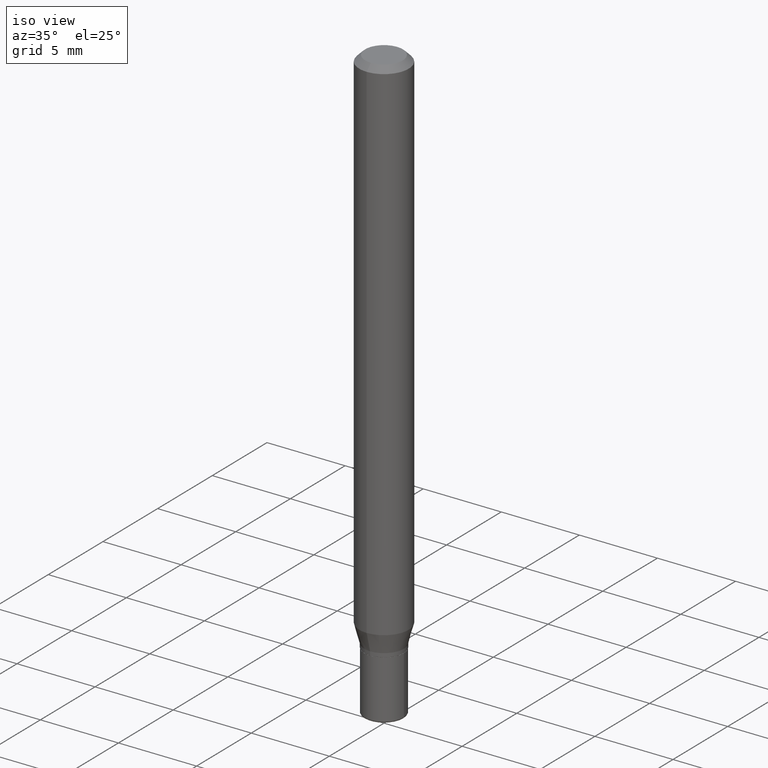
[diagram: clean part render]
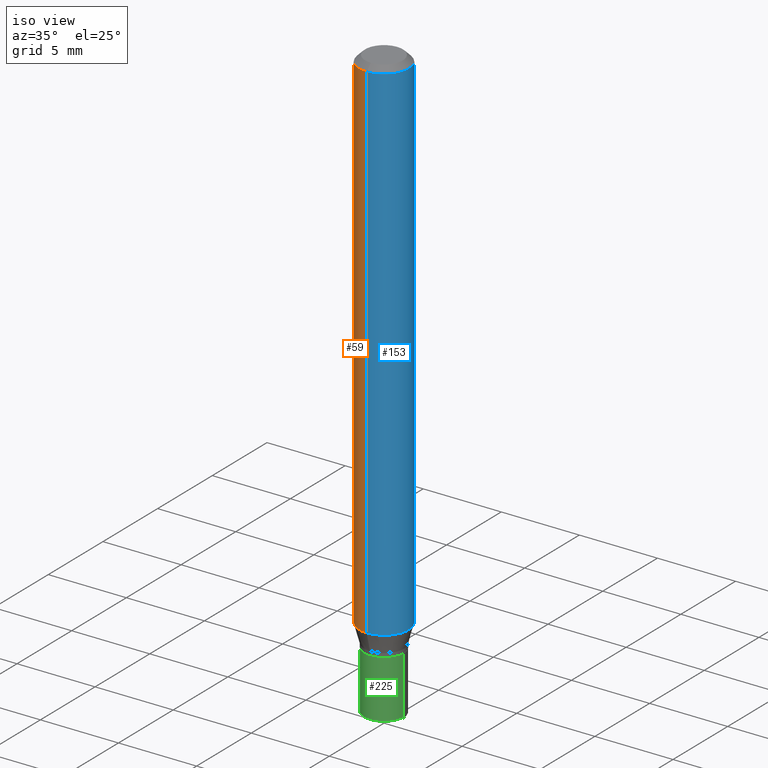
[diagram: same view with three faces highlighted in distinct colors, each labeled with its STEP entity id]
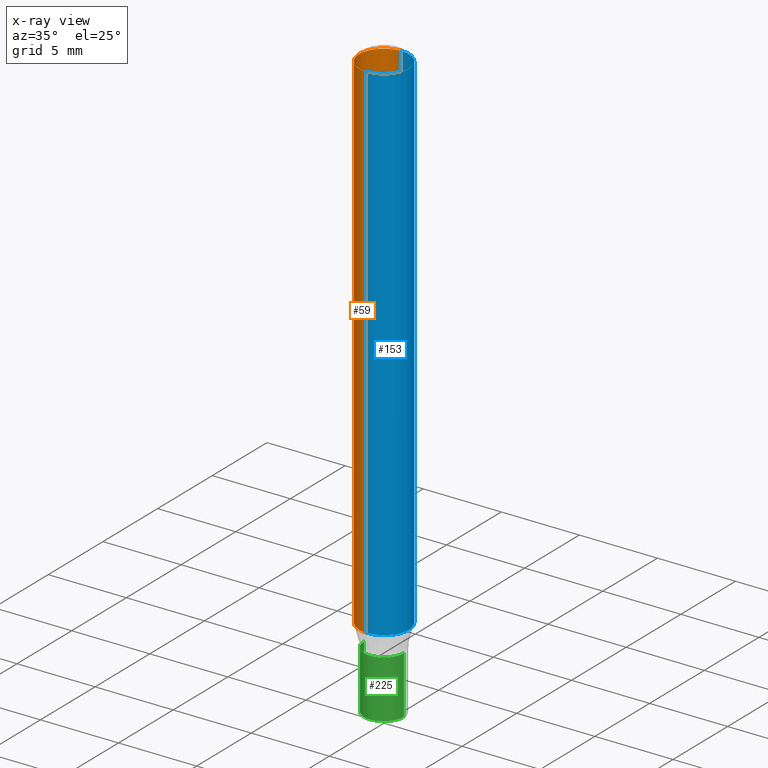
[diagram: x-ray of the same camera — body ghosted, the three highlighted faces saturated]
A machine part, iso view with three faces highlighted in distinct colors.
The next image is the same camera in x-ray (body ghosted, the three faces saturated) — at least one of them is partly hidden behind the body in this view.
Their STEP definitions:

[orange] entity #59 — the highlighted cylindrical surface (edge-blend (fillet) strip) has radius 1.5875 mm, axis along (-0, 0, 1).
#16 = VECTOR ( 'NONE', #256, 39.37007874015748143 ) ;
#30 = ORIENTED_EDGE ( 'NONE', *, *, #377, .T. ) ;
#36 = VERTEX_POINT ( 'NONE', #306 ) ;
#58 = DIRECTION ( 'NONE',  ( -2.445432708408292326E-29, 3.491533032914144486E-15, 1.000000000000000000 ) ) ;
#59 = ADVANCED_FACE ( 'NONE', ( #476 ), #396, .T. ) ;
#81 = ORIENTED_EDGE ( 'NONE', *, *, #282, .F. ) ;
#86 = CARTESIAN_POINT ( 'NONE',  ( 4.440892098500943678E-16, 0.06249999999999551747, -1.293349364905389098 ) ) ;
#99 = LINE ( 'NONE', #499, #16 ) ;
#102 = LINE ( 'NONE', #210, #217 ) ;
#116 = DIRECTION ( 'NONE',  ( -6.982962677686265922E-15, -1.000000000000000000, 4.370956789862821150E-15 ) ) ;
#133 = VERTEX_POINT ( 'NONE', #442 ) ;
#193 = EDGE_CURVE ( 'NONE', #252, #36, #508, .T. ) ;
#210 = CARTESIAN_POINT ( 'NONE',  ( -4.364351673553916201E-16, -0.06250000000000000000, 2.182208145571340057E-16 ) ) ;
#217 = VECTOR ( 'NONE', #336, 39.37007874015748143 ) ;
#223 = AXIS2_PLACEMENT_3D ( 'NONE', #267, #470, #400 ) ;
#241 = CARTESIAN_POINT ( 'NONE',  ( 4.440892098500943678E-16, 0.06249999999999995143, -0.01499999999999992138 ) ) ;
#252 = VERTEX_POINT ( 'NONE', #86 ) ;
#256 = DIRECTION ( 'NONE',  ( -2.445432708408292606E-29, 3.491533032914144486E-15, 1.000000000000000000 ) ) ;
#267 = CARTESIAN_POINT ( 'NONE',  ( 0.000000000000000000, 0.000000000000000000, 0.000000000000000000 ) ) ;
#271 = VERTEX_POINT ( 'NONE', #241 ) ;
#282 = EDGE_CURVE ( 'NONE', #271, #133, #485, .T. ) ;
#284 = AXIS2_PLACEMENT_3D ( 'NONE', #513, #479, #116 ) ;
#306 = CARTESIAN_POINT ( 'NONE',  ( -4.364351673553597698E-16, -0.06250000000000449640, -1.293349364905388654 ) ) ;
#310 = EDGE_CURVE ( 'NONE', #252, #271, #99, .T. ) ;
#336 = DIRECTION ( 'NONE',  ( -2.445432708408292606E-29, 3.491533032914144486E-15, 1.000000000000000000 ) ) ;
#376 = DIRECTION ( 'NONE',  ( -6.982962677686265922E-15, -1.000000000000000000, 3.483106191921935554E-15 ) ) ;
#377 = EDGE_CURVE ( 'NONE', #36, #133, #102, .T. ) ;
#396 = CYLINDRICAL_SURFACE ( 'NONE', #223, 0.06250000000000000000 ) ;
#400 = DIRECTION ( 'NONE',  ( -6.982962677686265922E-15, -1.000000000000000000, 3.491533032914144091E-15 ) ) ;
#425 = ORIENTED_EDGE ( 'NONE', *, *, #310, .F. ) ;
#434 = EDGE_LOOP ( 'NONE', ( #425, #480, #30, #81 ) ) ;
#442 = CARTESIAN_POINT ( 'NONE',  ( -4.364351673553912750E-16, -0.06250000000000005551, -0.01499999999999948597 ) ) ;
#460 = CARTESIAN_POINT ( 'NONE',  ( 3.668149062612366305E-31, -5.237299549371112845E-17, -0.01499999999999970281 ) ) ;
#463 = AXIS2_PLACEMENT_3D ( 'NONE', #460, #58, #376 ) ;
#470 = DIRECTION ( 'NONE',  ( -2.445432708408292326E-29, 3.491533032914144486E-15, 1.000000000000000000 ) ) ;
#476 = FACE_OUTER_BOUND ( 'NONE', #434, .T. ) ;
#479 = DIRECTION ( 'NONE',  ( -2.445432708408292326E-29, 3.491533032914144486E-15, 1.000000000000000000 ) ) ;
#480 = ORIENTED_EDGE ( 'NONE', *, *, #193, .T. ) ;
#485 = CIRCLE ( 'NONE', #463, 0.06250000000000000000 ) ;
#499 = CARTESIAN_POINT ( 'NONE',  ( 4.440892098500625669E-16, 0.06250000000000000000, -2.182208145571340057E-16 ) ) ;
#508 = CIRCLE ( 'NONE', #284, 0.06250000000000000000 ) ;
#513 = CARTESIAN_POINT ( 'NONE',  ( 3.162798840338729731E-29, -4.515772030665694516E-15, -1.293349364905388876 ) ) ;

[blue] entity #153 — the highlighted cylindrical surface (edge-blend (fillet) strip) has radius 1.5875 mm, axis along (-0, 0, 1).
#16 = VECTOR ( 'NONE', #256, 39.37007874015748143 ) ;
#18 = EDGE_CURVE ( 'NONE', #133, #271, #173, .T. ) ;
#34 = AXIS2_PLACEMENT_3D ( 'NONE', #61, #490, #219 ) ;
#36 = VERTEX_POINT ( 'NONE', #306 ) ;
#61 = CARTESIAN_POINT ( 'NONE',  ( 3.668149062612366305E-31, -5.237299549371112845E-17, -0.01499999999999970281 ) ) ;
#86 = CARTESIAN_POINT ( 'NONE',  ( 4.440892098500943678E-16, 0.06249999999999551747, -1.293349364905389098 ) ) ;
#87 = CARTESIAN_POINT ( 'NONE',  ( 0.000000000000000000, 0.000000000000000000, 0.000000000000000000 ) ) ;
#99 = LINE ( 'NONE', #499, #16 ) ;
#102 = LINE ( 'NONE', #210, #217 ) ;
#121 = FACE_OUTER_BOUND ( 'NONE', #136, .T. ) ;
#133 = VERTEX_POINT ( 'NONE', #442 ) ;
#136 = EDGE_LOOP ( 'NONE', ( #176, #317, #446, #227 ) ) ;
#140 = EDGE_CURVE ( 'NONE', #36, #252, #313, .T. ) ;
#153 = ADVANCED_FACE ( 'NONE', ( #121 ), #202, .T. ) ;
#173 = CIRCLE ( 'NONE', #34, 0.06250000000000000000 ) ;
#176 = ORIENTED_EDGE ( 'NONE', *, *, #140, .T. ) ;
#181 = AXIS2_PLACEMENT_3D ( 'NONE', #484, #404, #358 ) ;
#202 = CYLINDRICAL_SURFACE ( 'NONE', #437, 0.06250000000000000000 ) ;
#210 = CARTESIAN_POINT ( 'NONE',  ( -4.364351673553916201E-16, -0.06250000000000000000, 2.182208145571340057E-16 ) ) ;
#217 = VECTOR ( 'NONE', #336, 39.37007874015748143 ) ;
#219 = DIRECTION ( 'NONE',  ( -6.982962677686265922E-15, -1.000000000000000000, 3.483106191921935554E-15 ) ) ;
#227 = ORIENTED_EDGE ( 'NONE', *, *, #377, .F. ) ;
#241 = CARTESIAN_POINT ( 'NONE',  ( 4.440892098500943678E-16, 0.06249999999999995143, -0.01499999999999992138 ) ) ;
#252 = VERTEX_POINT ( 'NONE', #86 ) ;
#256 = DIRECTION ( 'NONE',  ( -2.445432708408292606E-29, 3.491533032914144486E-15, 1.000000000000000000 ) ) ;
#271 = VERTEX_POINT ( 'NONE', #241 ) ;
#278 = DIRECTION ( 'NONE',  ( -6.982962677686265922E-15, -1.000000000000000000, 3.491533032914144091E-15 ) ) ;
#306 = CARTESIAN_POINT ( 'NONE',  ( -4.364351673553597698E-16, -0.06250000000000449640, -1.293349364905388654 ) ) ;
#310 = EDGE_CURVE ( 'NONE', #252, #271, #99, .T. ) ;
#313 = CIRCLE ( 'NONE', #181, 0.06250000000000000000 ) ;
#317 = ORIENTED_EDGE ( 'NONE', *, *, #310, .T. ) ;
#336 = DIRECTION ( 'NONE',  ( -2.445432708408292606E-29, 3.491533032914144486E-15, 1.000000000000000000 ) ) ;
#358 = DIRECTION ( 'NONE',  ( -6.982962677686265922E-15, -1.000000000000000000, 4.370956789862821150E-15 ) ) ;
#377 = EDGE_CURVE ( 'NONE', #36, #133, #102, .T. ) ;
#404 = DIRECTION ( 'NONE',  ( -2.445432708408292326E-29, 3.491533032914144486E-15, 1.000000000000000000 ) ) ;
#437 = AXIS2_PLACEMENT_3D ( 'NONE', #87, #444, #278 ) ;
#442 = CARTESIAN_POINT ( 'NONE',  ( -4.364351673553912750E-16, -0.06250000000000005551, -0.01499999999999948597 ) ) ;
#444 = DIRECTION ( 'NONE',  ( -2.445432708408292326E-29, 3.491533032914144486E-15, 1.000000000000000000 ) ) ;
#446 = ORIENTED_EDGE ( 'NONE', *, *, #18, .F. ) ;
#484 = CARTESIAN_POINT ( 'NONE',  ( 3.162798840338729731E-29, -4.515772030665694516E-15, -1.293349364905388876 ) ) ;
#490 = DIRECTION ( 'NONE',  ( -2.445432708408292326E-29, 3.491533032914144486E-15, 1.000000000000000000 ) ) ;
#499 = CARTESIAN_POINT ( 'NONE',  ( 4.440892098500625669E-16, 0.06250000000000000000, -2.182208145571340057E-16 ) ) ;

[green] entity #225 — the highlighted cylindrical surface (edge-blend (fillet) strip) has radius 1.27 mm, axis along (-0, 0, 1).
#2 = AXIS2_PLACEMENT_3D ( 'NONE', #270, #74, #432 ) ;
#6 = CARTESIAN_POINT ( 'NONE',  ( -0.05000000000000000278, -4.611360836624325249E-15, -1.350000000000000089 ) ) ;
#12 = ORIENTED_EDGE ( 'NONE', *, *, #303, .F. ) ;
#35 = VECTOR ( 'NONE', #418, 39.37007874015748143 ) ;
#42 = DIRECTION ( 'NONE',  ( -2.445468806185136597E-29, 3.491481338843145583E-15, 1.000000000000000000 ) ) ;
#64 = EDGE_CURVE ( 'NONE', #364, #423, #351, .T. ) ;
#74 = DIRECTION ( 'NONE',  ( -2.445468806185136597E-29, 3.491481338843145583E-15, 1.000000000000000000 ) ) ;
#83 = CIRCLE ( 'NONE', #323, 0.05000000000000000278 ) ;
#112 = DIRECTION ( 'NONE',  ( 1.000000000000000000, -6.982962677686274599E-15, 0.000000000000000000 ) ) ;
#137 = CARTESIAN_POINT ( 'NONE',  ( 0.04999999999999996114, -3.491481338843130397E-16, 2.438088387897966145E-30 ) ) ;
#145 = VERTEX_POINT ( 'NONE', #477 ) ;
#152 = CARTESIAN_POINT ( 'NONE',  ( 0.000000000000000000, 0.000000000000000000, 0.000000000000000000 ) ) ;
#160 = EDGE_CURVE ( 'NONE', #321, #145, #83, .T. ) ;
#197 = DIRECTION ( 'NONE',  ( 1.000000000000000000, -6.982962677686265922E-15, 4.876176775795936353E-29 ) ) ;
#207 = CARTESIAN_POINT ( 'NONE',  ( 0.04999999999999991257, -5.568912735454817265E-15, -1.495000000000000329 ) ) ;
#220 = CARTESIAN_POINT ( 'NONE',  ( -0.04999999999999991257, -4.611360836624325249E-15, -1.495000000000000329 ) ) ;
#225 = ADVANCED_FACE ( 'NONE', ( #487 ), #320, .T. ) ;
#264 = LINE ( 'NONE', #137, #431 ) ;
#270 = CARTESIAN_POINT ( 'NONE',  ( 3.655975865246779683E-29, -5.219764601570503930E-15, -1.495000000000000329 ) ) ;
#273 = ORIENTED_EDGE ( 'NONE', *, *, #64, .T. ) ;
#281 = ORIENTED_EDGE ( 'NONE', *, *, #327, .T. ) ;
#300 = CARTESIAN_POINT ( 'NONE',  ( -0.04999999999999996114, 3.552713678800498168E-16, -2.459467545127451209E-30 ) ) ;
#303 = EDGE_CURVE ( 'NONE', #364, #321, #373, .T. ) ;
#320 = CYLINDRICAL_SURFACE ( 'NONE', #408, 0.04999999999999996114 ) ;
#321 = VERTEX_POINT ( 'NONE', #6 ) ;
#323 = AXIS2_PLACEMENT_3D ( 'NONE', #356, #440, #112 ) ;
#327 = EDGE_CURVE ( 'NONE', #423, #145, #264, .T. ) ;
#351 = CIRCLE ( 'NONE', #2, 0.04999999999999991257 ) ;
#356 = CARTESIAN_POINT ( 'NONE',  ( 3.301382888349935078E-29, -4.713499807438246596E-15, -1.350000000000000089 ) ) ;
#364 = VERTEX_POINT ( 'NONE', #220 ) ;
#373 = LINE ( 'NONE', #300, #35 ) ;
#384 = DIRECTION ( 'NONE',  ( -2.445468806185136877E-29, 3.491481338843145188E-15, 1.000000000000000000 ) ) ;
#398 = ORIENTED_EDGE ( 'NONE', *, *, #160, .F. ) ;
#408 = AXIS2_PLACEMENT_3D ( 'NONE', #152, #42, #197 ) ;
#418 = DIRECTION ( 'NONE',  ( -2.445468806185136877E-29, 3.491481338843145188E-15, 1.000000000000000000 ) ) ;
#423 = VERTEX_POINT ( 'NONE', #207 ) ;
#431 = VECTOR ( 'NONE', #384, 39.37007874015748143 ) ;
#432 = DIRECTION ( 'NONE',  ( 1.000000000000000000, -6.982962677686266711E-15, 0.000000000000000000 ) ) ;
#440 = DIRECTION ( 'NONE',  ( -2.445468806185136597E-29, 3.491481338843145583E-15, 1.000000000000000000 ) ) ;
#457 = EDGE_LOOP ( 'NONE', ( #12, #273, #281, #398 ) ) ;
#477 = CARTESIAN_POINT ( 'NONE',  ( 0.05000000000000000278, -5.062647941322559931E-15, -1.350000000000000089 ) ) ;
#487 = FACE_OUTER_BOUND ( 'NONE', #457, .T. ) ;